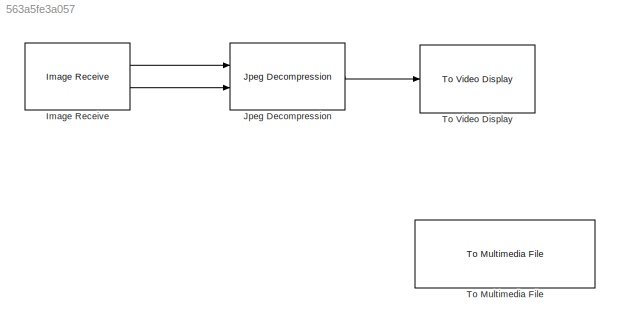
MODEL slx_563a5fe3a057
KIND model
BLOCK [Reference] Image Receive  REF=xpcvideoutillib/Image Receive
  Ports = [0, 2]
  SourceBlock = xpcvideoutillib/Image Receive
  SourceType = xpcimagereceive
  ipAddress = 0.0.0.0
  ipPort = 25000
  maxpacket = 40*1024
  sampletime = 0.1
  vblLen = on
  width = 640*480
BLOCK [Reference] Jpeg Decompression  REF=xpcvideoutillib/Jpeg Decompression
  Ports = [2, 1]
  SourceBlock = xpcvideoutillib/Jpeg Decompression
  SourceType = DJPEG
  cspace = RGB
  height = 480
  isig = One multidimensional signal
  trigger = on
  width = 640
BLOCK [Reference] To Multimedia File  REF=dspvision/To Multimedia File
  Commented = on
  Ports = [1]
  SourceBlock = dspvision/To Multimedia File
  SourceType = To Multimedia File
  audioCompressor = None (uncompressed)
  audioDatatype = Determine from input data type
  fileType = AVI
  fourcc = RGB
  imagePorts = One multidimensional signal
  mj2000CompFactor = 10
  outputFilename = <userpath>\Documents\6-5-13_Test\6-5-13_Test.avi
  streamSelection = Video only
  videoCompressor = MJPEG Compressor
  videoQuality = 75
BLOCK [Reference] To Video Display  REF=visionsinks/To Video Display
  OutputDevice = On-screen video monitor
  Ports = [1]
  SourceBlock = visionsinks/To Video Display
  SourceType = To Video Display
  dataOrg = Column-major
  fullScreen = off
  imagePorts = One multidimensional signal
  inputColorFormat = RGB
  inputType = Obsolete
  isWindowOpen = off
  openAtMdlStart = on
  saveWindowSize = off
  videoWindowHeight = 480
  videoWindowWidth = 640
  videoWindowX = 876
  videoWindowY = 181
LINE Image Receive:1 -> Jpeg Decompression:1
LINE Image Receive:2 -> Jpeg Decompression:2
LINE Jpeg Decompression:1 -> To Video Display:1
